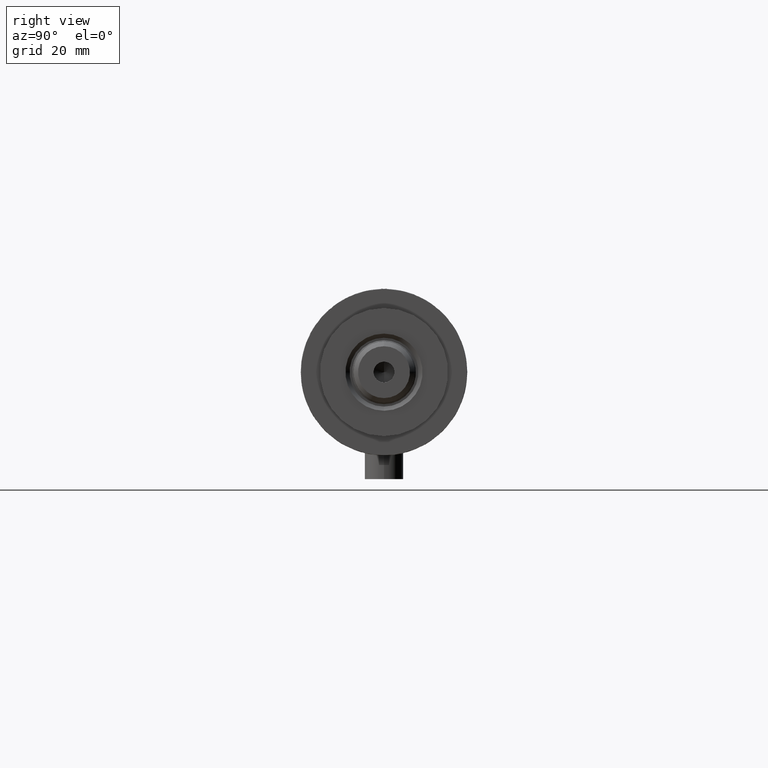
[diagram: clean part render]
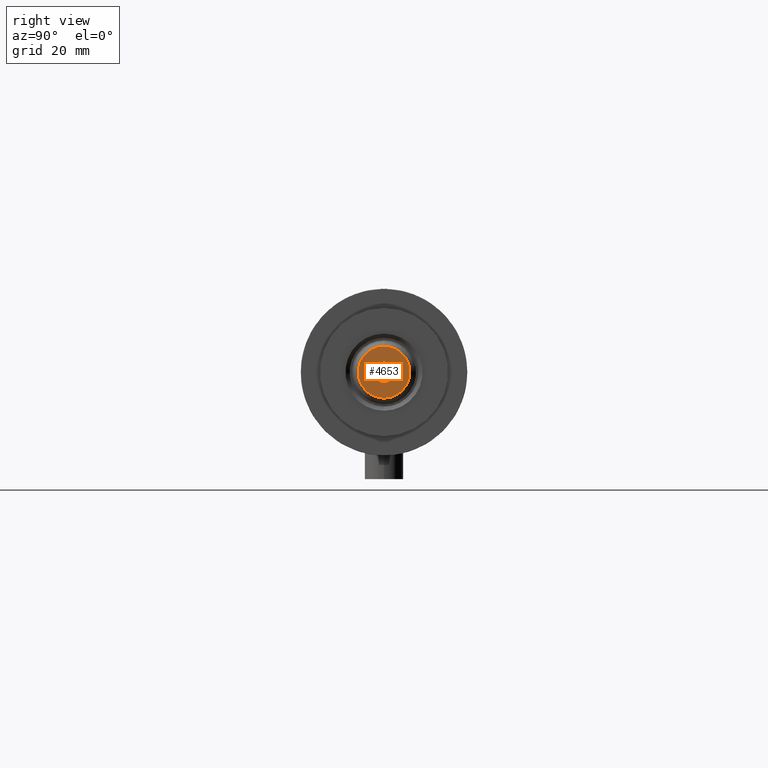
[diagram: same view with one face highlighted and labeled with its STEP entity id]
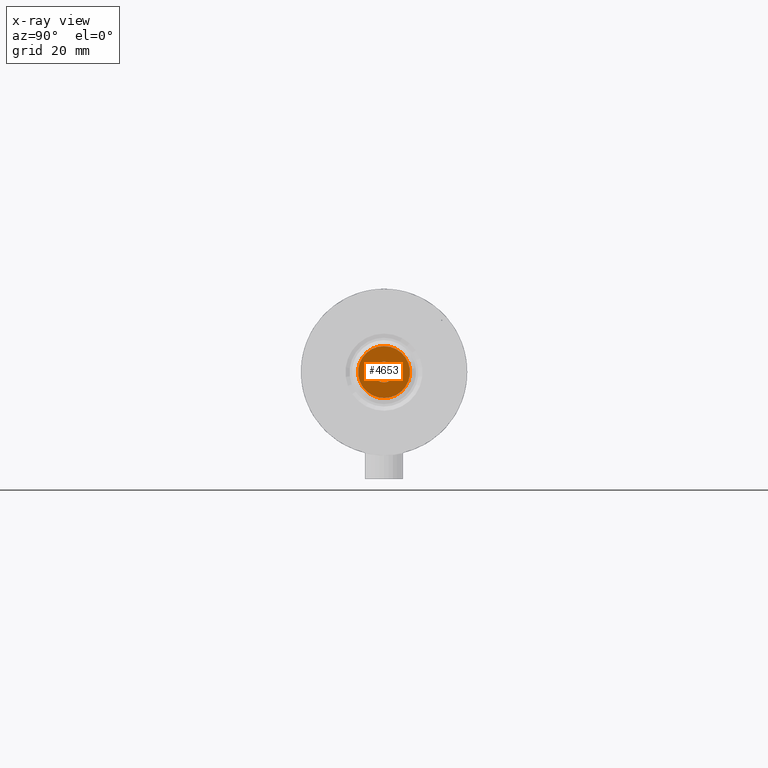
[diagram: x-ray of the same camera — body ghosted, the highlighted face saturated]
A machine part, right view. The second image highlights one B-rep face of the part: STEP entity #4653.
The next image is the same camera in x-ray: the body ghosted, the highlighted face saturated — about 0% of this face is hidden behind the body in this view.
In plain terms, the highlighted planar face has unit normal (1, 0, -0).
Its self-contained STEP definition (entity closure, byte-faithful):
#14 = DIRECTION ( 'NONE',  ( -0.000000000000000000, -0.000000000000000000, 1.000000000000000000 ) ) ;
#137 = CIRCLE ( 'NONE', #4222, 3.249999999999998224 ) ;
#151 = EDGE_LOOP ( 'NONE', ( #3827, #1851 ) ) ;
#299 = EDGE_CURVE ( 'NONE', #641, #3263, #4804, .T. ) ;
#345 = DIRECTION ( 'NONE',  ( 0.000000000000000000, 0.000000000000000000, 1.000000000000000000 ) ) ;
#408 = CARTESIAN_POINT ( 'NONE',  ( 0.000000000000000000, 0.000000000000000000, 179.6000000000000227 ) ) ;
#611 = EDGE_CURVE ( 'NONE', #2871, #3577, #1228, .T. ) ;
#641 = VERTEX_POINT ( 'NONE', #3954 ) ;
#805 = FACE_OUTER_BOUND ( 'NONE', #1361, .T. ) ;
#968 = DIRECTION ( 'NONE',  ( 1.000000000000000000, 0.000000000000000000, 0.000000000000000000 ) ) ;
#1108 = DIRECTION ( 'NONE',  ( 0.000000000000000000, 0.000000000000000000, 1.000000000000000000 ) ) ;
#1127 = CARTESIAN_POINT ( 'NONE',  ( 0.000000000000000000, 0.000000000000000000, 179.6000000000000227 ) ) ;
#1191 = DIRECTION ( 'NONE',  ( 1.000000000000000000, 0.000000000000000000, -0.000000000000000000 ) ) ;
#1228 = CIRCLE ( 'NONE', #3738, 8.100000000000051159 ) ;
#1361 = EDGE_LOOP ( 'NONE', ( #1984, #4106 ) ) ;
#1451 = CARTESIAN_POINT ( 'NONE',  ( 0.000000000000000000, 0.000000000000000000, 179.6000000000000227 ) ) ;
#1669 = CARTESIAN_POINT ( 'NONE',  ( 0.000000000000000000, 0.000000000000000000, 179.6000000000000227 ) ) ;
#1851 = ORIENTED_EDGE ( 'NONE', *, *, #299, .F. ) ;
#1852 = PLANE ( 'NONE',  #4618 ) ;
#1893 = DIRECTION ( 'NONE',  ( 1.000000000000000000, 0.000000000000000000, 0.000000000000000000 ) ) ;
#1930 = EDGE_CURVE ( 'NONE', #3577, #2871, #2827, .T. ) ;
#1984 = ORIENTED_EDGE ( 'NONE', *, *, #1930, .T. ) ;
#2708 = AXIS2_PLACEMENT_3D ( 'NONE', #4469, #14, #3390 ) ;
#2827 = CIRCLE ( 'NONE', #3431, 8.100000000000051159 ) ;
#2871 = VERTEX_POINT ( 'NONE', #4798 ) ;
#2992 = FACE_BOUND ( 'NONE', #151, .T. ) ;
#3178 = DIRECTION ( 'NONE',  ( 0.000000000000000000, 0.000000000000000000, 1.000000000000000000 ) ) ;
#3263 = VERTEX_POINT ( 'NONE', #4324 ) ;
#3390 = DIRECTION ( 'NONE',  ( 1.000000000000000000, 0.000000000000000000, 0.000000000000000000 ) ) ;
#3431 = AXIS2_PLACEMENT_3D ( 'NONE', #1127, #1108, #4069 ) ;
#3476 = CARTESIAN_POINT ( 'NONE',  ( -8.100000000000051159, 0.000000000000000000, 179.6000000000000227 ) ) ;
#3577 = VERTEX_POINT ( 'NONE', #3476 ) ;
#3738 = AXIS2_PLACEMENT_3D ( 'NONE', #1669, #3178, #968 ) ;
#3827 = ORIENTED_EDGE ( 'NONE', *, *, #4396, .F. ) ;
#3954 = CARTESIAN_POINT ( 'NONE',  ( -3.249999999999998224, 3.980102097228895766E-16, 179.6000000000000227 ) ) ;
#4069 = DIRECTION ( 'NONE',  ( 1.000000000000000000, 0.000000000000000000, 0.000000000000000000 ) ) ;
#4106 = ORIENTED_EDGE ( 'NONE', *, *, #611, .T. ) ;
#4222 = AXIS2_PLACEMENT_3D ( 'NONE', #408, #4855, #1893 ) ;
#4324 = CARTESIAN_POINT ( 'NONE',  ( 3.249999999999998224, 0.000000000000000000, 179.6000000000000227 ) ) ;
#4396 = EDGE_CURVE ( 'NONE', #3263, #641, #137, .T. ) ;
#4469 = CARTESIAN_POINT ( 'NONE',  ( 0.000000000000000000, 0.000000000000000000, 179.6000000000000227 ) ) ;
#4618 = AXIS2_PLACEMENT_3D ( 'NONE', #1451, #345, #1191 ) ;
#4653 = ADVANCED_FACE ( 'NONE', ( #805, #2992 ), #1852, .T. ) ;
#4798 = CARTESIAN_POINT ( 'NONE',  ( 8.100000000000051159, 1.077689183249673958E-15, 179.6000000000000227 ) ) ;
#4804 = CIRCLE ( 'NONE', #2708, 3.249999999999998224 ) ;
#4855 = DIRECTION ( 'NONE',  ( -0.000000000000000000, -0.000000000000000000, 1.000000000000000000 ) ) ;